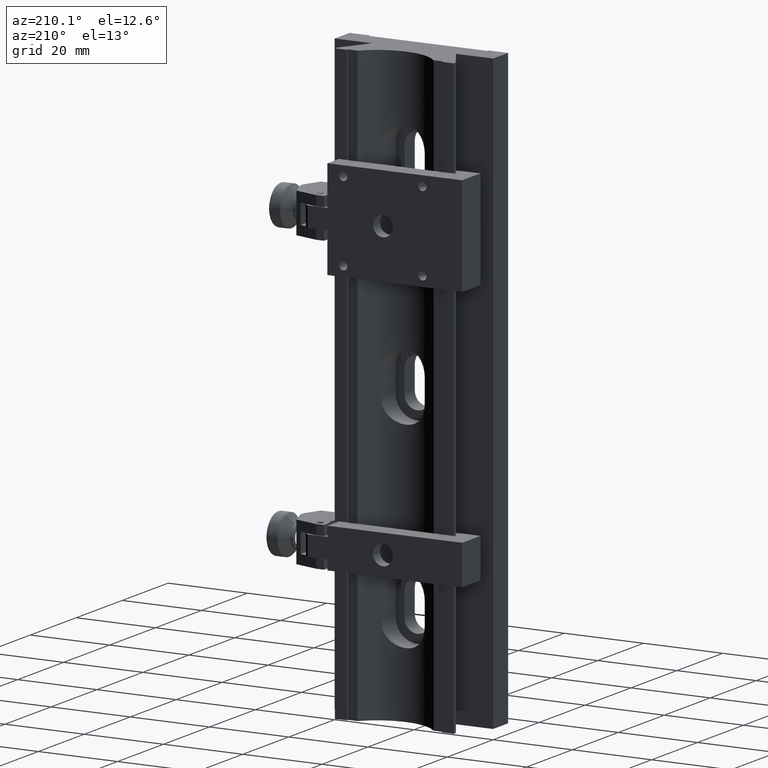
[diagram: clean part render]
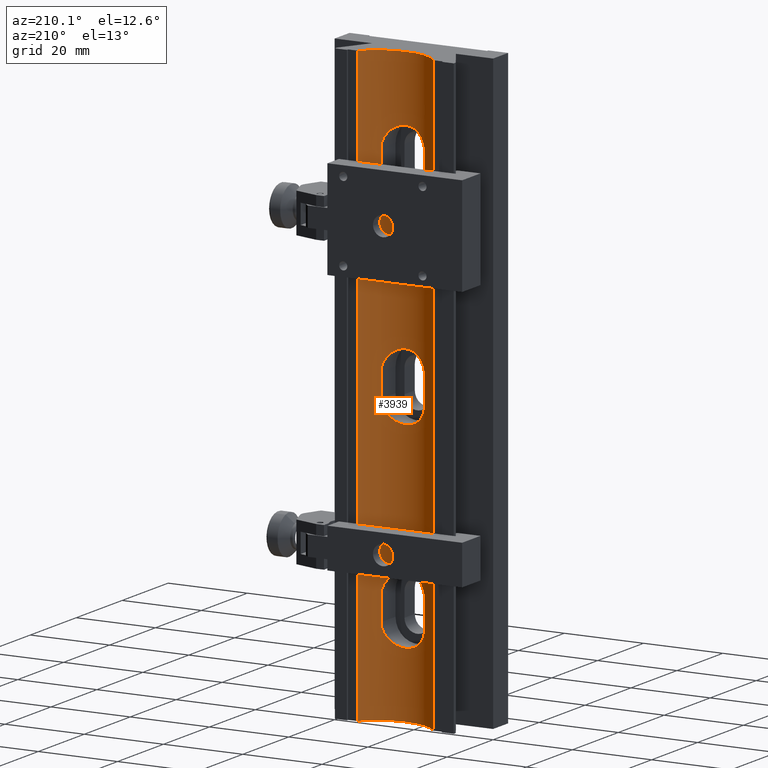
[diagram: same view with one face highlighted and labeled with its STEP entity id]
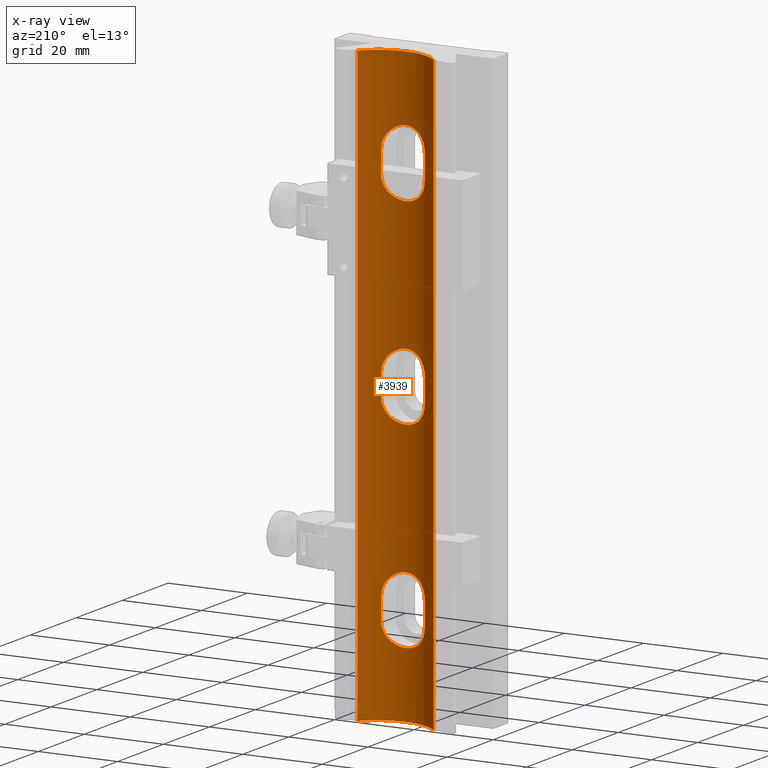
[diagram: x-ray of the same camera — body ghosted, the highlighted face saturated]
A machine part, auxiliary view. The second image highlights one B-rep face of the part: STEP entity #3939.
The next image is the same camera in x-ray: the body ghosted, the highlighted face saturated — about 0% of this face is hidden behind the body in this view.
In plain terms, the highlighted cylindrical surface (partial cylindrical patch) has radius 12.5 mm, axis along (-0, 0, -1).
Its self-contained STEP definition (entity closure, byte-faithful):
#21 = CARTESIAN_POINT ( 'NONE',  ( 5.499999999999998224, 4.775027839678173791, -47.00000000000000711 ) ) ;
#35 = ORIENTED_EDGE ( 'NONE', *, *, #217, .F. ) ;
#36 = CARTESIAN_POINT ( 'NONE',  ( -5.463268972524252476, 4.756815190711168206, 53.73288512969654107 ) ) ;
#53 = CARTESIAN_POINT ( 'NONE',  ( 5.499999999999995559, 4.775027839678172903, -53.36853593480275748 ) ) ;
#55 = EDGE_CURVE ( 'NONE', #2124, #766, #472, .T. ) ;
#56 = EDGE_CURVE ( 'NONE', #4422, #766, #3806, .T. ) ;
#64 = CARTESIAN_POINT ( 'NONE',  ( -4.927301002126869278, 4.511737245493972814, 55.45025479802641399 ) ) ;
#79 = CARTESIAN_POINT ( 'NONE',  ( -1.266012518167693779, 3.562992296828745964, -58.35539071678001477 ) ) ;
#117 = CARTESIAN_POINT ( 'NONE',  ( -3.365233826132083994, 3.957591329563104221, 42.63491411110871354 ) ) ;
#118 = CARTESIAN_POINT ( 'NONE',  ( 1.444167463114245598, 3.582471709711286145, 58.31011750618486644 ) ) ;
#130 = CARTESIAN_POINT ( 'NONE',  ( 4.468409719719217854, 4.325465594975082873, -43.78826126659802043 ) ) ;
#137 = CARTESIAN_POINT ( 'NONE',  ( 5.500000000000020428, 4.775027839678184449, 75.00000000000000000 ) ) ;
#139 = VECTOR ( 'NONE', #5163, 1000.000000000000000 ) ;
#154 = EDGE_CURVE ( 'NONE', #1066, #4923, #5124, .T. ) ;
#156 = CARTESIAN_POINT ( 'NONE',  ( 1.266012518167691558, 3.562992296828746408, -41.64460928321998523 ) ) ;
#165 = CARTESIAN_POINT ( 'NONE',  ( -4.360951971730211874, 4.284773272989582438, 43.64384853326597380 ) ) ;
#180 = CARTESIAN_POINT ( 'NONE',  ( -5.317647263843144678, 4.687213424654787630, -45.54842979611112241 ) ) ;
#193 = CARTESIAN_POINT ( 'NONE',  ( 0.1746818680405329560, 3.499893860054750672, 41.49975877267203117 ) ) ;
#206 = CARTESIAN_POINT ( 'NONE',  ( 5.213099869976741019, 4.637932341751268339, 4.789608110793816209 ) ) ;
#211 = VERTEX_POINT ( 'NONE', #3080 ) ;
#213 = CARTESIAN_POINT ( 'NONE',  ( 4.365141366191275019, 4.284993196813134730, -6.364994128390055295 ) ) ;
#217 = EDGE_CURVE ( 'NONE', #1066, #3548, #1658, .T. ) ;
#221 = CARTESIAN_POINT ( 'NONE',  ( 4.927301002126865725, 4.511737245493967485, 44.54974520197361443 ) ) ;
#237 = CARTESIAN_POINT ( 'NONE',  ( -5.499999999999999112, 4.775027839678175567, -46.63146406519726384 ) ) ;
#242 = CARTESIAN_POINT ( 'NONE',  ( -5.500000000000000000, 4.775027839678175567, -2.999999999999999112 ) ) ;
#259 = CARTESIAN_POINT ( 'NONE',  ( 5.500000000000000000, 4.775027839678176456, 3.368399263218692319 ) ) ;
#264 = CARTESIAN_POINT ( 'NONE',  ( 4.140132957479336184, 4.202588055097336905, -6.638006792826296909 ) ) ;
#270 = CARTESIAN_POINT ( 'NONE',  ( 4.140132957479337072, 4.202588055097337794, 43.36199320717373240 ) ) ;
#292 = CARTESIAN_POINT ( 'NONE',  ( 4.360951971730207433, 4.284773272989578885, 6.356151466734034194 ) ) ;
#300 = CARTESIAN_POINT ( 'NONE',  ( -3.640810629803843845, 4.039074654214521054, -7.137592340526057733 ) ) ;
#305 = CARTESIAN_POINT ( 'NONE',  ( 3.638581638029511733, 4.038379994050423250, 42.86037223972357424 ) ) ;
#323 = FACE_BOUND ( 'NONE', #1668, .T. ) ;
#327 = ORIENTED_EDGE ( 'NONE', *, *, #2253, .T. ) ;
#376 = CARTESIAN_POINT ( 'NONE',  ( -5.004172744658501593, 4.545134261420411548, 5.289133550571618159 ) ) ;
#395 = EDGE_CURVE ( 'NONE', #2683, #3176, #3883, .T. ) ;
#436 = DIRECTION ( 'NONE',  ( -0.000000000000000000, 0.000000000000000000, -1.000000000000000000 ) ) ;
#444 = CARTESIAN_POINT ( 'NONE',  ( -1.444167463114248262, 3.582471709711286145, -58.31011750618485934 ) ) ;
#472 = B_SPLINE_CURVE_WITH_KNOTS ( 'NONE', 3,
 ( #3544, #1392, #2712, #534, #3111, #4036, #2342, #4087, #165, #4868, #3600, #1911, #117, #1422, #3172, #4921, #2739, #4492, #2425, #2479, #1160, #193, #3313, #5002, #4234, #2852, #3743, #1131, #3258, #2907, #305, #270, #703, #644, #4661, #221, #674, #4575, #2055, #2397, #1945, #731 ),
 .UNSPECIFIED., .F., .F.,
 ( 4, 2, 2, 2, 2, 2, 2, 2, 2, 2, 2, 2, 2, 2, 2, 2, 2, 2, 2, 2, 4 ),
 ( 0.000000000000000000, 0.001088223458269300037, 0.002176446916538600073, 0.003264670374807899893, 0.003808782103942540912, 0.004352893833077181932, 0.005441117291346476981, 0.006529340749615772030, 0.007073452478750420422, 0.007617564207885067946, 0.008705787666154360394, 0.009249899395289007051, 0.009794011124423651973, 0.01088223458269294355, 0.01197045804096223513, 0.01305868149923152671, 0.01414690495750082003, 0.01469101668663546668, 0.01523512841577011161, 0.01632335187403940319, 0.01741157533230869650 ),
 .UNSPECIFIED. ) ;
#474 = CARTESIAN_POINT ( 'NONE',  ( 0.7235754915566942058, 3.519625967096239982, -58.45527255045185200 ) ) ;
#487 = EDGE_CURVE ( 'NONE', #3548, #1973, #2781, .T. ) ;
#504 = CARTESIAN_POINT ( 'NONE',  ( 4.757545737347824044, 4.440405074606873725, -55.76546601820658822 ) ) ;
#511 = CARTESIAN_POINT ( 'NONE',  ( 1.960439013360198768, 3.653553443696078151, 58.14185918289807375 ) ) ;
#522 = CARTESIAN_POINT ( 'NONE',  ( 2.455686713790326436, 3.739010744038293144, -42.06565600194459620 ) ) ;
#534 = CARTESIAN_POINT ( 'NONE',  ( -5.320886567516186716, 4.688748875783184111, 45.56165402701615363 ) ) ;
#535 = CARTESIAN_POINT ( 'NONE',  ( -5.211065515426130723, 4.637008669236495351, 54.79507806985631646 ) ) ;
#537 = ORIENTED_EDGE ( 'NONE', *, *, #56, .F. ) ;
#549 = CARTESIAN_POINT ( 'NONE',  ( 4.134927261176860824, 4.203101428351039281, -43.36901785846102797 ) ) ;
#554 = CARTESIAN_POINT ( 'NONE',  ( -5.500000000000000888, 4.775027839678175567, -53.00000000000000000 ) ) ;
#583 = CARTESIAN_POINT ( 'NONE',  ( -2.407148620655123076E-16, 16.00000000000000000, 75.00000000000000000 ) ) ;
#605 = EDGE_CURVE ( 'NONE', #1496, #3176, #3130, .T. ) ;
#606 = CARTESIAN_POINT ( 'NONE',  ( -5.004172744658504257, 4.545134261420413324, -44.71086644942840849 ) ) ;
#628 = CARTESIAN_POINT ( 'NONE',  ( 5.500000000000000000, 4.775027839678175567, 3.000000000000000000 ) ) ;
#630 = CARTESIAN_POINT ( 'NONE',  ( -4.140132957479336184, 4.202588055097336017, -43.36199320717371819 ) ) ;
#644 = CARTESIAN_POINT ( 'NONE',  ( 4.664130054569969097, 4.402269544413255353, 44.07975994278031351 ) ) ;
#669 = CARTESIAN_POINT ( 'NONE',  ( -4.134927261176861712, 4.203101428351038393, -6.630982141538981800 ) ) ;
#674 = CARTESIAN_POINT ( 'NONE',  ( 5.004172744658499816, 4.545134261420411548, 44.71086644942839428 ) ) ;
#690 = CARTESIAN_POINT ( 'NONE',  ( -2.452909808896964972, 3.738324891094070956, -42.06391993402969121 ) ) ;
#696 = CARTESIAN_POINT ( 'NONE',  ( -4.360951971730206544, 4.284773272989578885, -6.356151466734034194 ) ) ;
#703 = CARTESIAN_POINT ( 'NONE',  ( 4.365141366191271466, 4.284993196813129401, 43.63500587160995536 ) ) ;
#717 = CARTESIAN_POINT ( 'NONE',  ( -0.1746818680405349544, 3.499893860054751116, 8.500241227327974158 ) ) ;
#718 = FACE_BOUND ( 'NONE', #1717, .T. ) ;
#724 = CARTESIAN_POINT ( 'NONE',  ( -4.015897234029106144, 4.161930955679301825, -6.762161946319627859 ) ) ;
#731 = CARTESIAN_POINT ( 'NONE',  ( 5.499999999999996447, 4.775027839678173791, 47.00000000000000711 ) ) ;
#752 = CYLINDRICAL_SURFACE ( 'NONE', #5603, 12.50000000000000000 ) ;
#755 = VERTEX_POINT ( 'NONE', #21 ) ;
#766 = VERTEX_POINT ( 'NONE', #5575 ) ;
#837 = CARTESIAN_POINT ( 'NONE',  ( -4.757545737347821380, 4.440405074606874614, 5.765466018206602428 ) ) ;
#852 = CARTESIAN_POINT ( 'NONE',  ( -5.320886567516186716, 4.688748875783184111, -54.43834597298383926 ) ) ;
#855 = CARTESIAN_POINT ( 'NONE',  ( -2.407148620655123076E-16, 16.00000000000000000, -75.00000000000000000 ) ) ;
#859 = CARTESIAN_POINT ( 'NONE',  ( 3.365233826132080885, 3.957591329563105109, 57.36508588889129356 ) ) ;
#901 = CARTESIAN_POINT ( 'NONE',  ( -5.463371493397495726, 4.756877311680622000, -53.72955118223784154 ) ) ;
#905 = EDGE_CURVE ( 'NONE', #755, #211, #4416, .T. ) ;
#934 = EDGE_CURVE ( 'NONE', #2683, #4175, #1623, .T. ) ;
#937 = CARTESIAN_POINT ( 'NONE',  ( -4.664130054569975314, 4.402269544413257130, 55.92024005721968649 ) ) ;
#958 = CARTESIAN_POINT ( 'NONE',  ( -4.134927261176864377, 4.203101428351041946, -56.63098214153899335 ) ) ;
#996 = ORIENTED_EDGE ( 'NONE', *, *, #154, .T. ) ;
#1001 = CARTESIAN_POINT ( 'NONE',  ( 2.769513885777390882, 3.806797052175196594, -42.23464939816305730 ) ) ;
#1010 = CARTESIAN_POINT ( 'NONE',  ( 5.499999999999998224, 4.775027839678175567, -3.000000000000000000 ) ) ;
#1030 = CARTESIAN_POINT ( 'NONE',  ( -0.7235754915566965373, 3.519625967096239538, -41.54472744954816221 ) ) ;
#1062 = CARTESIAN_POINT ( 'NONE',  ( -3.359488323669843179, 3.956037097100740585, -42.63069234585947953 ) ) ;
#1066 = VERTEX_POINT ( 'NONE', #4414 ) ;
#1089 = CARTESIAN_POINT ( 'NONE',  ( -4.365141366191277683, 4.284993196813134730, -43.63500587160996957 ) ) ;
#1120 = CARTESIAN_POINT ( 'NONE',  ( -2.767522286145578381, 3.806394110068380243, -42.23367735365171427 ) ) ;
#1125 = CARTESIAN_POINT ( 'NONE',  ( -2.455686713790327325, 3.739010744038294476, -7.934343998055412683 ) ) ;
#1131 = CARTESIAN_POINT ( 'NONE',  ( 2.452909808896960975, 3.738324891094070068, 42.06391993402969121 ) ) ;
#1147 = CARTESIAN_POINT ( 'NONE',  ( 0.3716744979042022057, 3.500218916825644566, 8.499502461394968122 ) ) ;
#1154 = CARTESIAN_POINT ( 'NONE',  ( -1.960439013360199656, 3.653553443696078595, -8.141859182898073755 ) ) ;
#1160 = CARTESIAN_POINT ( 'NONE',  ( -0.3716744979042029273, 3.500218916825644122, 41.50049753860503898 ) ) ;
#1182 = CARTESIAN_POINT ( 'NONE',  ( 9.604686356149276349, 8.000000000000001776, 75.00000000000000000 ) ) ;
#1255 = B_SPLINE_CURVE_WITH_KNOTS ( 'NONE', 3,
 ( #1716, #3561, #901, #852, #3021, #2678, #4779, #1742, #2648, #958, #2195, #3479, #3945, #2141, #3104, #4428, #1352, #444, #79, #3454, #2597, #3052, #4888, #474, #4373, #5238, #5289, #1773, #2226, #3508, #1384, #2707, #3976, #1820, #504, #5267, #1330, #4346, #4456, #3891, #53, #5208 ),
 .UNSPECIFIED., .F., .F.,
 ( 4, 2, 2, 2, 2, 2, 2, 2, 2, 2, 2, 2, 2, 2, 2, 2, 2, 2, 2, 2, 4 ),
 ( 0.000000000000000000, 0.001088223458269300037, 0.002176446916538600073, 0.003264670374807899893, 0.003808782103942540912, 0.004352893833077181932, 0.005441117291346476981, 0.006529340749615772030, 0.007073452478750420422, 0.007617564207885067946, 0.008705787666154360394, 0.009249899395289007051, 0.009794011124423651973, 0.01088223458269294355, 0.01197045804096223513, 0.01305868149923152671, 0.01414690495750082003, 0.01469101668663546668, 0.01523512841577011161, 0.01632335187403940319, 0.01741157533230869650 ),
 .UNSPECIFIED. ) ;
#1261 = ORIENTED_EDGE ( 'NONE', *, *, #1967, .T. ) ;
#1311 = ORIENTED_EDGE ( 'NONE', *, *, #395, .F. ) ;
#1315 = CARTESIAN_POINT ( 'NONE',  ( -2.767522286145578381, 3.806394110068380243, 57.76632264634828573 ) ) ;
#1324 = ORIENTED_EDGE ( 'NONE', *, *, #1828, .T. ) ;
#1330 = CARTESIAN_POINT ( 'NONE',  ( 5.004172744658499816, 4.545134261420411548, -55.28913355057161283 ) ) ;
#1352 = CARTESIAN_POINT ( 'NONE',  ( -1.791243918881802122, 3.627770058525933372, -58.20330787231332437 ) ) ;
#1361 = CARTESIAN_POINT ( 'NONE',  ( 3.640810629803840737, 4.039074654214518389, 57.13759234052604086 ) ) ;
#1384 = CARTESIAN_POINT ( 'NONE',  ( 3.638581638029511733, 4.038379994050423250, -57.13962776027643287 ) ) ;
#1392 = CARTESIAN_POINT ( 'NONE',  ( -5.500000000000000000, 4.775027839678176456, 46.63160073678130857 ) ) ;
#1394 = B_SPLINE_CURVE_WITH_KNOTS ( 'NONE', 3,
 ( #3984, #3545, #1830, #2713, #5300, #2286, #3087, #1805, #5250, #4009, #2684, #1361, #859, #5275, #4819, #511, #4897, #118, #3112, #4438, #2607, #4840, #5354, #3958, #4869, #4466, #1779, #2262, #1315, #3144, #3061, #2204, #4359, #937, #2178, #64, #2658, #535, #3035, #36, #2232, #1860 ),
 .UNSPECIFIED., .F., .F.,
 ( 4, 2, 2, 2, 2, 2, 2, 2, 2, 2, 2, 2, 2, 2, 2, 2, 2, 2, 2, 2, 4 ),
 ( 0.000000000000000000, 0.001088223458269302422, 0.002176446916538604844, 0.003264670374807907265, 0.003808782103942550887, 0.004352893833077194942, 0.005441117291346483052, 0.006529340749615771163, 0.007073452478750415218, 0.007617564207885058405, 0.008705787666154349985, 0.009249899395288994908, 0.009794011124423641565, 0.01088223458269293314, 0.01197045804096222646, 0.01305868149923151630, 0.01414690495750081135, 0.01469101668663545801, 0.01523512841577010293, 0.01632335187403939625, 0.01741157533230868956 ),
 .UNSPECIFIED. ) ;
#1408 = CARTESIAN_POINT ( 'NONE',  ( -0.1746818680405354818, 3.499893860054751116, -41.49975877267203828 ) ) ;
#1419 = DIRECTION ( 'NONE',  ( -0.000000000000000000, 0.000000000000000000, -1.000000000000000000 ) ) ;
#1422 = CARTESIAN_POINT ( 'NONE',  ( -2.769513885777393991, 3.806797052175194374, 42.23464939816305730 ) ) ;
#1451 = ORIENTED_EDGE ( 'NONE', *, *, #487, .F. ) ;
#1455 = ORIENTED_EDGE ( 'NONE', *, *, #605, .T. ) ;
#1496 = VERTEX_POINT ( 'NONE', #3414 ) ;
#1498 = CARTESIAN_POINT ( 'NONE',  ( 4.015897234029105256, 4.161930955679302713, 6.762161946319630523 ) ) ;
#1504 = CARTESIAN_POINT ( 'NONE',  ( -2.769513885777389550, 3.806797052175194374, -7.765350601836940037 ) ) ;
#1506 = AXIS2_PLACEMENT_3D ( 'NONE', #583, #2336, #3137 ) ;
#1529 = CARTESIAN_POINT ( 'NONE',  ( 1.791243918881799235, 3.627770058525933372, 8.203307872313336802 ) ) ;
#1586 = CARTESIAN_POINT ( 'NONE',  ( -3.638581638029509069, 4.038379994050423250, -42.86037223972356713 ) ) ;
#1594 = CARTESIAN_POINT ( 'NONE',  ( 3.638581638029508181, 4.038379994050424138, -7.139627760276439972 ) ) ;
#1618 = VECTOR ( 'NONE', #2570, 1000.000000000000000 ) ;
#1623 = B_SPLINE_CURVE_WITH_KNOTS ( 'NONE', 3,
 ( #4620, #259, #4565, #5046, #206, #5514, #2438, #1956, #292, #5456, #1498, #3327, #2010, #2042, #2380, #1984, #1529, #5540, #5076, #3272, #1147, #717, #2463, #4595, #3731, #3761, #4215, #5101, #2783, #5424, #2355, #3298, #4101, #3245, #837, #2552, #376, #3932, #5596, #5567, #4304, #4676 ),
 .UNSPECIFIED., .F., .F.,
 ( 4, 2, 2, 2, 2, 2, 2, 2, 2, 2, 2, 2, 2, 2, 2, 2, 2, 2, 2, 2, 4 ),
 ( 8.673617379884034509E-19, 0.001088223458269297434, 0.002176446916538595303, 0.003264670374807892954, 0.003808782103942540045, 0.004352893833077187136, 0.005441117291346481318, 0.006529340749615774632, 0.007073452478750421289, 0.007617564207885067946, 0.008705787666154360394, 0.009249899395289007051, 0.009794011124423651973, 0.01088223458269294529, 0.01197045804096223687, 0.01305868149923153018, 0.01414690495750082003, 0.01469101668663546668, 0.01523512841577011508, 0.01632335187403940666, 0.01741157533230869997 ),
 .UNSPECIFIED. ) ;
#1626 = CARTESIAN_POINT ( 'NONE',  ( 5.211065515426129835, 4.637008669236497127, -4.795078069856328007 ) ) ;
#1633 = VERTEX_POINT ( 'NONE', #3180 ) ;
#1658 = LINE ( 'NONE', #5615, #1618 ) ;
#1668 = EDGE_LOOP ( 'NONE', ( #3119, #1455, #1311, #2477 ) ) ;
#1716 = CARTESIAN_POINT ( 'NONE',  ( -5.500000000000000888, 4.775027839678175567, -53.00000000000000000 ) ) ;
#1717 = EDGE_LOOP ( 'NONE', ( #327, #5469, #537, #1261 ) ) ;
#1742 = CARTESIAN_POINT ( 'NONE',  ( -4.468409719719223183, 4.325465594975084649, -56.21173873340199378 ) ) ;
#1764 = VECTOR ( 'NONE', #4057, 1000.000000000000000 ) ;
#1773 = CARTESIAN_POINT ( 'NONE',  ( 2.452909808896960975, 3.738324891094070068, -57.93608006597031590 ) ) ;
#1779 = CARTESIAN_POINT ( 'NONE',  ( -1.783197991779767788, 3.623181025438773517, 58.21554003631119656 ) ) ;
#1805 = CARTESIAN_POINT ( 'NONE',  ( 4.468409719719217854, 4.325465594975082873, 56.21173873340197247 ) ) ;
#1816 = CARTESIAN_POINT ( 'NONE',  ( 3.365233826132080885, 3.957591329563105109, -42.63491411110871354 ) ) ;
#1820 = CARTESIAN_POINT ( 'NONE',  ( 4.664130054569969097, 4.402269544413255353, -55.92024005721970781 ) ) ;
#1828 = EDGE_CURVE ( 'NONE', #211, #2370, #4271, .T. ) ;
#1830 = CARTESIAN_POINT ( 'NONE',  ( 5.463371493397491285, 4.756877311680619336, 53.72955118223783444 ) ) ;
#1860 = CARTESIAN_POINT ( 'NONE',  ( -5.499999999999999112, 4.775027839678173791, 53.00000000000000000 ) ) ;
#1874 = CARTESIAN_POINT ( 'NONE',  ( 3.640810629803840737, 4.039074654214518389, -42.86240765947393783 ) ) ;
#1879 = CARTESIAN_POINT ( 'NONE',  ( -5.499999999999994671, 4.775027839678172015, 75.00000000000000000 ) ) ;
#1911 = CARTESIAN_POINT ( 'NONE',  ( -3.640810629803843845, 4.039074654214521942, 42.86240765947395204 ) ) ;
#1945 = CARTESIAN_POINT ( 'NONE',  ( 5.499999999999995559, 4.775027839678172903, 46.63146406519727094 ) ) ;
#1956 = CARTESIAN_POINT ( 'NONE',  ( 4.468409719719221407, 4.325465594975082873, 6.211738733401977797 ) ) ;
#1961 = CARTESIAN_POINT ( 'NONE',  ( 0.3589657864649589136, 3.503822942303210120, -8.491329862232156245 ) ) ;
#1967 = EDGE_CURVE ( 'NONE', #4422, #3491, #1394, .T. ) ;
#1973 = VERTEX_POINT ( 'NONE', #3519 ) ;
#1984 = CARTESIAN_POINT ( 'NONE',  ( 1.960439013360198768, 3.653553443696078151, 8.141859182898071978 ) ) ;
#1989 = CARTESIAN_POINT ( 'NONE',  ( -4.935953207741842874, 4.514820086043213720, -5.452646198609490291 ) ) ;
#2010 = CARTESIAN_POINT ( 'NONE',  ( 3.365233826132080441, 3.957591329563105109, 7.365085888891296229 ) ) ;
#2016 = CARTESIAN_POINT ( 'NONE',  ( 5.499999999999998224, 4.775027839678175567, -3.000000000000000000 ) ) ;
#2033 = LINE ( 'NONE', #3375, #4052 ) ;
#2042 = CARTESIAN_POINT ( 'NONE',  ( 2.769513885777389994, 3.806797052175196594, 7.765350601836939148 ) ) ;
#2050 = CARTESIAN_POINT ( 'NONE',  ( 0.7235754915566960932, 3.519625967096238650, -8.455272550451859104 ) ) ;
#2055 = CARTESIAN_POINT ( 'NONE',  ( 5.317647263843142014, 4.687213424654785854, 45.54842979611111531 ) ) ;
#2070 = CARTESIAN_POINT ( 'NONE',  ( -2.407148620655123076E-16, 16.00000000000000000, 75.00000000000000000 ) ) ;
#2124 = VERTEX_POINT ( 'NONE', #3654 ) ;
#2141 = CARTESIAN_POINT ( 'NONE',  ( -2.769513885777393991, 3.806797052175194374, -57.76535060183693560 ) ) ;
#2178 = CARTESIAN_POINT ( 'NONE',  ( -4.757545737347824932, 4.440405074606876390, 55.76546601820659532 ) ) ;
#2195 = CARTESIAN_POINT ( 'NONE',  ( -4.015897234029109697, 4.161930955679306265, -56.76216194631963674 ) ) ;
#2204 = CARTESIAN_POINT ( 'NONE',  ( -4.140132957479336184, 4.202588055097336017, 56.63800679282630313 ) ) ;
#2212 = EDGE_CURVE ( 'NONE', #2370, #1633, #1255, .T. ) ;
#2221 = CARTESIAN_POINT ( 'NONE',  ( -1.436019803944293072, 3.577646812477412119, -41.67844251871878924 ) ) ;
#2226 = CARTESIAN_POINT ( 'NONE',  ( 2.767522286145575716, 3.806394110068378911, -57.76632264634827862 ) ) ;
#2232 = CARTESIAN_POINT ( 'NONE',  ( -5.499999999999999112, 4.775027839678175567, 53.36853593480275038 ) ) ;
#2253 = EDGE_CURVE ( 'NONE', #3491, #2124, #2360, .T. ) ;
#2262 = CARTESIAN_POINT ( 'NONE',  ( -2.452909808896964972, 3.738324891094070956, 57.93608006597030879 ) ) ;
#2273 = CARTESIAN_POINT ( 'NONE',  ( 5.499999999999998224, 4.775027839678173791, -47.00000000000000711 ) ) ;
#2282 = LINE ( 'NONE', #137, #3486 ) ;
#2286 = CARTESIAN_POINT ( 'NONE',  ( 4.935953207741841098, 4.514820086043214609, 55.45264619860950717 ) ) ;
#2328 = CARTESIAN_POINT ( 'NONE',  ( 1.960439013360198768, 3.653553443696078151, -41.85814081710193335 ) ) ;
#2336 = DIRECTION ( 'NONE',  ( -0.000000000000000000, 0.000000000000000000, -1.000000000000000000 ) ) ;
#2342 = CARTESIAN_POINT ( 'NONE',  ( -4.767077514528522464, 4.442719698820005725, 44.23363479812596211 ) ) ;
#2355 = CARTESIAN_POINT ( 'NONE',  ( -3.638581638029507292, 4.038379994050423250, 7.139627760276445301 ) ) ;
#2360 = LINE ( 'NONE', #1879, #1764 ) ;
#2370 = VERTEX_POINT ( 'NONE', #554 ) ;
#2371 = CARTESIAN_POINT ( 'NONE',  ( -5.499999999999998224, 4.775027839678173791, 3.000000000000000888 ) ) ;
#2380 = CARTESIAN_POINT ( 'NONE',  ( 2.455686713790326881, 3.739010744038294920, 7.934343998055412683 ) ) ;
#2387 = CARTESIAN_POINT ( 'NONE',  ( -5.320886567516185828, 4.688748875783186776, -4.438345972983841037 ) ) ;
#2397 = CARTESIAN_POINT ( 'NONE',  ( 5.463268972524248923, 4.756815190711164654, 46.26711487030346603 ) ) ;
#2415 = CARTESIAN_POINT ( 'NONE',  ( 0.9034421561682073332, 3.531417676067723388, -8.428312260402234912 ) ) ;
#2425 = CARTESIAN_POINT ( 'NONE',  ( -1.266012518167693779, 3.562992296828745964, 41.64460928321998523 ) ) ;
#2438 = CARTESIAN_POINT ( 'NONE',  ( 4.767077514528520688, 4.442719698820005725, 5.766365201874047663 ) ) ;
#2444 = CARTESIAN_POINT ( 'NONE',  ( 1.783197991779767344, 3.623181025438775738, -8.215540036311200112 ) ) ;
#2463 = CARTESIAN_POINT ( 'NONE',  ( -0.3589657864649586916, 3.503822942303210564, 8.491329862232156245 ) ) ;
#2464 = FACE_OUTER_BOUND ( 'NONE', #4980, .T. ) ;
#2470 = CARTESIAN_POINT ( 'NONE',  ( 2.767522286145574828, 3.806394110068380243, -7.766322646348287506 ) ) ;
#2477 = ORIENTED_EDGE ( 'NONE', *, *, #934, .T. ) ;
#2479 = CARTESIAN_POINT ( 'NONE',  ( -0.7318247305610910969, 3.516321624483725206, 41.53681207847808565 ) ) ;
#2506 = CARTESIAN_POINT ( 'NONE',  ( -4.468409719719221407, 4.325465594975086425, -6.211738733401979573 ) ) ;
#2552 = CARTESIAN_POINT ( 'NONE',  ( -4.927301002126864837, 4.511737245493970150, 5.450254798026420211 ) ) ;
#2570 = DIRECTION ( 'NONE',  ( 0.000000000000000000, -0.000000000000000000, 1.000000000000000000 ) ) ;
#2597 = CARTESIAN_POINT ( 'NONE',  ( -0.3716744979042029273, 3.500218916825644122, -58.49950246139498233 ) ) ;
#2607 = CARTESIAN_POINT ( 'NONE',  ( 0.3716744979042022612, 3.500218916825644566, 58.49950246139498944 ) ) ;
#2648 = CARTESIAN_POINT ( 'NONE',  ( -4.360951971730211874, 4.284773272989582438, -56.35615146673404041 ) ) ;
#2653 = AXIS2_PLACEMENT_3D ( 'NONE', #855, #4786, #5583 ) ;
#2658 = CARTESIAN_POINT ( 'NONE',  ( -5.004172744658504257, 4.545134261420413324, 55.28913355057162704 ) ) ;
#2678 = CARTESIAN_POINT ( 'NONE',  ( -4.935953207741842874, 4.514820086043211944, -55.45264619860950717 ) ) ;
#2683 = VERTEX_POINT ( 'NONE', #628 ) ;
#2684 = CARTESIAN_POINT ( 'NONE',  ( 4.015897234029105256, 4.161930955679302713, 56.76216194631963674 ) ) ;
#2707 = CARTESIAN_POINT ( 'NONE',  ( 4.140132957479337072, 4.202588055097337794, -56.63800679282628892 ) ) ;
#2712 = CARTESIAN_POINT ( 'NONE',  ( -5.463371493397495726, 4.756877311680622000, 46.27044881776216556 ) ) ;
#2713 = CARTESIAN_POINT ( 'NONE',  ( 5.320886567516184051, 4.688748875783184999, 54.43834597298385347 ) ) ;
#2739 = CARTESIAN_POINT ( 'NONE',  ( -1.791243918881802122, 3.627770058525933372, 41.79669212768665432 ) ) ;
#2781 = CIRCLE ( 'NONE', #1506, 12.50000000000000000 ) ;
#2783 = CARTESIAN_POINT ( 'NONE',  ( -2.767522286145574828, 3.806394110068377579, 7.766322646348287506 ) ) ;
#2808 = CARTESIAN_POINT ( 'NONE',  ( -4.927301002126869278, 4.511737245493972814, -44.54974520197360732 ) ) ;
#2814 = CARTESIAN_POINT ( 'NONE',  ( 2.452909808896963639, 3.738324891094070068, -7.936080065970312347 ) ) ;
#2833 = CARTESIAN_POINT ( 'NONE',  ( -5.463268972524252476, 4.756815190711168206, -46.26711487030347314 ) ) ;
#2843 = CARTESIAN_POINT ( 'NONE',  ( -0.7318247305610894315, 3.516321624483726538, -8.463187921521909018 ) ) ;
#2852 = CARTESIAN_POINT ( 'NONE',  ( 1.436019803944289963, 3.577646812477411675, 41.67844251871878924 ) ) ;
#2873 = CARTESIAN_POINT ( 'NONE',  ( 1.436019803944290851, 3.577646812477408567, -8.321557481281223190 ) ) ;
#2893 = CARTESIAN_POINT ( 'NONE',  ( -1.783197991779767788, 3.623181025438773517, -41.78445996368879634 ) ) ;
#2907 = CARTESIAN_POINT ( 'NONE',  ( 3.359488323669839183, 3.956037097100741473, 42.63069234585947953 ) ) ;
#2925 = ORIENTED_EDGE ( 'NONE', *, *, #5058, .F. ) ;
#2928 = CARTESIAN_POINT ( 'NONE',  ( 5.499999999999998224, 4.775027839678175567, -3.368535934802750376 ) ) ;
#2935 = CARTESIAN_POINT ( 'NONE',  ( 5.500000000000002665, 4.775027839678175567, 75.00000000000000000 ) ) ;
#3021 = CARTESIAN_POINT ( 'NONE',  ( -5.213099869976743683, 4.637932341751265675, -54.78960811079380022 ) ) ;
#3035 = CARTESIAN_POINT ( 'NONE',  ( -5.317647263843144678, 4.687213424654787630, 54.45157020388889180 ) ) ;
#3052 = CARTESIAN_POINT ( 'NONE',  ( 0.1746818680405329560, 3.499893860054750672, -58.50024122732799015 ) ) ;
#3061 = CARTESIAN_POINT ( 'NONE',  ( -3.638581638029509069, 4.038379994050423250, 57.13962776027643287 ) ) ;
#3080 = CARTESIAN_POINT ( 'NONE',  ( -5.499999999999999112, 4.775027839678173791, -47.00000000000000711 ) ) ;
#3086 = ORIENTED_EDGE ( 'NONE', *, *, #2212, .T. ) ;
#3087 = CARTESIAN_POINT ( 'NONE',  ( 4.767077514528518911, 4.442719698820004837, 55.76636520187405921 ) ) ;
#3104 = CARTESIAN_POINT ( 'NONE',  ( -2.455686713790328657, 3.739010744038292700, -57.93434399805540380 ) ) ;
#3111 = CARTESIAN_POINT ( 'NONE',  ( -5.213099869976743683, 4.637932341751265675, 45.21039188920618557 ) ) ;
#3112 = CARTESIAN_POINT ( 'NONE',  ( 1.266012518167691558, 3.562992296828746408, 58.35539071678000766 ) ) ;
#3119 = ORIENTED_EDGE ( 'NONE', *, *, #4276, .T. ) ;
#3130 = B_SPLINE_CURVE_WITH_KNOTS ( 'NONE', 3,
 ( #242, #5549, #3253, #2387, #5520, #1989, #4258, #2506, #696, #669, #724, #300, #5055, #1504, #1125, #1154, #4627, #3305, #4193, #2843, #3334, #5085, #1961, #2050, #2415, #2873, #2444, #2814, #2470, #3800, #1594, #264, #213, #4225, #5461, #3737, #4140, #1626, #3710, #5430, #2928, #2016 ),
 .UNSPECIFIED., .F., .F.,
 ( 4, 2, 2, 2, 2, 2, 2, 2, 2, 2, 2, 2, 2, 2, 2, 2, 2, 2, 2, 2, 4 ),
 ( 8.673617379884034509E-19, 0.001088223458269295266, 0.002176446916538590966, 0.003264670374807886449, 0.003808782103942533540, 0.004352893833077181064, 0.005441117291346473511, 0.006529340749615765091, 0.007073452478750411748, 0.007617564207885058405, 0.008705787666154349985, 0.009249899395288996642, 0.009794011124423643300, 0.01088223458269293661, 0.01197045804096222993, 0.01305868149923152151, 0.01414690495750081656, 0.01469101668663546321, 0.01523512841577010987, 0.01632335187403940666, 0.01741157533230869997 ),
 .UNSPECIFIED. ) ;
#3137 = DIRECTION ( 'NONE',  ( 0.000000000000000000, -1.000000000000000000, 0.000000000000000000 ) ) ;
#3144 = CARTESIAN_POINT ( 'NONE',  ( -3.359488323669843179, 3.956037097100740585, 57.36930765414049915 ) ) ;
#3161 = CARTESIAN_POINT ( 'NONE',  ( -0.3589657864649589136, 3.503822942303211008, -41.50867013776785797 ) ) ;
#3172 = CARTESIAN_POINT ( 'NONE',  ( -2.455686713790328657, 3.739010744038292700, 42.06565600194458909 ) ) ;
#3176 = VERTEX_POINT ( 'NONE', #1010 ) ;
#3180 = CARTESIAN_POINT ( 'NONE',  ( 5.499999999999996447, 4.775027839678173791, -53.00000000000000000 ) ) ;
#3245 = CARTESIAN_POINT ( 'NONE',  ( -4.664130054569973538, 4.402269544413255353, 5.920240057219704255 ) ) ;
#3253 = CARTESIAN_POINT ( 'NONE',  ( -5.463371493397493950, 4.756877311680622000, -3.729551182237841100 ) ) ;
#3258 = CARTESIAN_POINT ( 'NONE',  ( 2.767522286145575716, 3.806394110068378911, 42.23367735365170716 ) ) ;
#3272 = CARTESIAN_POINT ( 'NONE',  ( 0.7318247305610885434, 3.516321624483726538, 8.463187921521909018 ) ) ;
#3298 = CARTESIAN_POINT ( 'NONE',  ( -4.140132957479334408, 4.202588055097335129, 6.638006792826297797 ) ) ;
#3305 = CARTESIAN_POINT ( 'NONE',  ( -1.444167463114246930, 3.582471709711284369, -8.310117506184880654 ) ) ;
#3313 = CARTESIAN_POINT ( 'NONE',  ( 0.3589657864649564156, 3.503822942303211452, 41.50867013776785086 ) ) ;
#3327 = CARTESIAN_POINT ( 'NONE',  ( 3.640810629803841181, 4.039074654214518389, 7.137592340526055956 ) ) ;
#3334 = CARTESIAN_POINT ( 'NONE',  ( -0.3716744979042026498, 3.500218916825645454, -8.499502461394968122 ) ) ;
#3375 = CARTESIAN_POINT ( 'NONE',  ( -5.499999999999984013, 4.775027839678166686, 75.00000000000000000 ) ) ;
#3383 = DIRECTION ( 'NONE',  ( 0.000000000000000000, 1.000000000000000000, 0.000000000000000000 ) ) ;
#3414 = CARTESIAN_POINT ( 'NONE',  ( -5.500000000000000000, 4.775027839678175567, -2.999999999999999112 ) ) ;
#3436 = CARTESIAN_POINT ( 'NONE',  ( -5.499999999999976019, 4.775027839678163133, 75.00000000000000000 ) ) ;
#3454 = CARTESIAN_POINT ( 'NONE',  ( -0.7318247305610910969, 3.516321624483725206, -58.46318792152189303 ) ) ;
#3479 = CARTESIAN_POINT ( 'NONE',  ( -3.640810629803843845, 4.039074654214521942, -57.13759234052605507 ) ) ;
#3486 = VECTOR ( 'NONE', #1419, 1000.000000000000000 ) ;
#3491 = VERTEX_POINT ( 'NONE', #5608 ) ;
#3508 = CARTESIAN_POINT ( 'NONE',  ( 3.359488323669839183, 3.956037097100741473, -57.36930765414052757 ) ) ;
#3519 = CARTESIAN_POINT ( 'NONE',  ( -9.604686356149272797, 7.999999999999998224, 75.00000000000000000 ) ) ;
#3544 = CARTESIAN_POINT ( 'NONE',  ( -5.500000000000000888, 4.775027839678175567, 47.00000000000000711 ) ) ;
#3545 = CARTESIAN_POINT ( 'NONE',  ( 5.499999999999999112, 4.775027839678174679, 53.36839926321869854 ) ) ;
#3548 = VERTEX_POINT ( 'NONE', #1182 ) ;
#3558 = CARTESIAN_POINT ( 'NONE',  ( 5.499999999999999112, 4.775027839678174679, -46.63160073678130857 ) ) ;
#3561 = CARTESIAN_POINT ( 'NONE',  ( -5.500000000000000000, 4.775027839678176456, -53.36839926321868433 ) ) ;
#3600 = CARTESIAN_POINT ( 'NONE',  ( -4.015897234029109697, 4.161930955679306265, 43.23783805368038458 ) ) ;
#3619 = ORIENTED_EDGE ( 'NONE', *, *, #5508, .F. ) ;
#3640 = CARTESIAN_POINT ( 'NONE',  ( 0.3716744979042022612, 3.500218916825644566, -41.50049753860503898 ) ) ;
#3654 = CARTESIAN_POINT ( 'NONE',  ( -5.500000000000000888, 4.775027839678175567, 47.00000000000000711 ) ) ;
#3655 = VECTOR ( 'NONE', #5556, 1000.000000000000000 ) ;
#3698 = VECTOR ( 'NONE', #436, 1000.000000000000000 ) ;
#3710 = CARTESIAN_POINT ( 'NONE',  ( 5.317647263843144678, 4.687213424654785854, -4.451570203888885580 ) ) ;
#3731 = CARTESIAN_POINT ( 'NONE',  ( -0.9034421561682075552, 3.531417676067723832, 8.428312260402234912 ) ) ;
#3737 = CARTESIAN_POINT ( 'NONE',  ( 4.927301002126865725, 4.511737245493970150, -5.450254798026420211 ) ) ;
#3743 = CARTESIAN_POINT ( 'NONE',  ( 1.783197991779765346, 3.623181025438774849, 41.78445996368879634 ) ) ;
#3761 = CARTESIAN_POINT ( 'NONE',  ( -1.436019803944291295, 3.577646812477409011, 8.321557481281221413 ) ) ;
#3790 = CARTESIAN_POINT ( 'NONE',  ( -5.211065515426130723, 4.637008669236495351, -45.20492193014366933 ) ) ;
#3800 = CARTESIAN_POINT ( 'NONE',  ( 3.359488323669838739, 3.956037097100741473, -7.369307654140526687 ) ) ;
#3806 = LINE ( 'NONE', #2935, #3655 ) ;
#3814 = LINE ( 'NONE', #5217, #139 ) ;
#3874 = DIRECTION ( 'NONE',  ( -0.000000000000000000, 0.000000000000000000, -1.000000000000000000 ) ) ;
#3883 = LINE ( 'NONE', #3911, #3698 ) ;
#3891 = CARTESIAN_POINT ( 'NONE',  ( 5.463268972524248923, 4.756815190711164654, -53.73288512969653397 ) ) ;
#3911 = CARTESIAN_POINT ( 'NONE',  ( 5.500000000000013323, 4.775027839678182673, 75.00000000000000000 ) ) ;
#3932 = CARTESIAN_POINT ( 'NONE',  ( -5.211065515426134276, 4.637008669236494462, 4.795078069856331560 ) ) ;
#3939 = ADVANCED_FACE ( 'NONE', ( #323, #5222, #718, #2464 ), #752, .F. ) ;
#3945 = CARTESIAN_POINT ( 'NONE',  ( -3.365233826132083994, 3.957591329563104221, -57.36508588889129356 ) ) ;
#3958 = CARTESIAN_POINT ( 'NONE',  ( -0.7235754915566965373, 3.519625967096239538, 58.45527255045185200 ) ) ;
#3976 = CARTESIAN_POINT ( 'NONE',  ( 4.365141366191271466, 4.284993196813129401, -56.36499412839003753 ) ) ;
#3984 = CARTESIAN_POINT ( 'NONE',  ( 5.499999999999998224, 4.775027839678173791, 53.00000000000000000 ) ) ;
#4009 = CARTESIAN_POINT ( 'NONE',  ( 4.134927261176860824, 4.203101428351039281, 56.63098214153898624 ) ) ;
#4023 = CARTESIAN_POINT ( 'NONE',  ( 0.7318247305610888764, 3.516321624483723873, -41.53681207847809276 ) ) ;
#4036 = CARTESIAN_POINT ( 'NONE',  ( -4.935953207741842874, 4.514820086043211944, 44.54735380139051415 ) ) ;
#4052 = VECTOR ( 'NONE', #3874, 1000.000000000000000 ) ;
#4054 = CARTESIAN_POINT ( 'NONE',  ( 4.767077514528518911, 4.442719698820004837, -44.23363479812596211 ) ) ;
#4057 = DIRECTION ( 'NONE',  ( -0.000000000000000000, 0.000000000000000000, -1.000000000000000000 ) ) ;
#4077 = CARTESIAN_POINT ( 'NONE',  ( 1.444167463114245598, 3.582471709711286145, -41.68988249381513356 ) ) ;
#4078 = VECTOR ( 'NONE', #4332, 1000.000000000000000 ) ;
#4087 = CARTESIAN_POINT ( 'NONE',  ( -4.468409719719223183, 4.325465594975084649, 43.78826126659804174 ) ) ;
#4101 = CARTESIAN_POINT ( 'NONE',  ( -4.365141366191275019, 4.284993196813132954, 6.364994128390054406 ) ) ;
#4131 = CARTESIAN_POINT ( 'NONE',  ( -5.499999999999999112, 4.775027839678173791, -47.00000000000000711 ) ) ;
#4140 = CARTESIAN_POINT ( 'NONE',  ( 5.004172744658500704, 4.545134261420413324, -5.289133550571614606 ) ) ;
#4175 = VERTEX_POINT ( 'NONE', #2371 ) ;
#4193 = CARTESIAN_POINT ( 'NONE',  ( -1.266012518167691336, 3.562992296828747296, -8.355390716780018323 ) ) ;
#4215 = CARTESIAN_POINT ( 'NONE',  ( -1.783197991779766900, 3.623181025438775738, 8.215540036311200112 ) ) ;
#4225 = CARTESIAN_POINT ( 'NONE',  ( 4.664130054569972650, 4.402269544413258018, -5.920240057219702479 ) ) ;
#4234 = CARTESIAN_POINT ( 'NONE',  ( 0.9034421561682066670, 3.531417676067726941, 41.57168773959777042 ) ) ;
#4258 = CARTESIAN_POINT ( 'NONE',  ( -4.767077514528521576, 4.442719698820006613, -5.766365201874047663 ) ) ;
#4271 = LINE ( 'NONE', #3436, #4078 ) ;
#4276 = EDGE_CURVE ( 'NONE', #4175, #1496, #2033, .T. ) ;
#4304 = CARTESIAN_POINT ( 'NONE',  ( -5.499999999999998224, 4.775027839678173791, 3.368535934802754817 ) ) ;
#4332 = DIRECTION ( 'NONE',  ( -0.000000000000000000, 0.000000000000000000, -1.000000000000000000 ) ) ;
#4346 = CARTESIAN_POINT ( 'NONE',  ( 5.211065515426128947, 4.637008669236493574, -54.79507806985631646 ) ) ;
#4359 = CARTESIAN_POINT ( 'NONE',  ( -4.365141366191277683, 4.284993196813134730, 56.36499412839005174 ) ) ;
#4373 = CARTESIAN_POINT ( 'NONE',  ( 0.9034421561682066670, 3.531417676067726941, -58.42831226040222958 ) ) ;
#4395 = CARTESIAN_POINT ( 'NONE',  ( -0.9034421561682099977, 3.531417676067727385, -41.57168773959777752 ) ) ;
#4414 = CARTESIAN_POINT ( 'NONE',  ( 9.604686356149276349, 8.000000000000001776, -75.00000000000000000 ) ) ;
#4416 = B_SPLINE_CURVE_WITH_KNOTS ( 'NONE', 3,
 ( #2273, #3558, #5392, #4912, #4453, #4966, #4054, #130, #4478, #549, #4853, #1874, #1816, #1001, #522, #2328, #5311, #4077, #156, #4023, #3640, #1408, #3161, #1030, #4395, #2221, #2893, #690, #1120, #1062, #1586, #630, #1089, #4993, #4647, #2808, #606, #3790, #180, #2833, #237, #4131 ),
 .UNSPECIFIED., .F., .F.,
 ( 4, 2, 2, 2, 2, 2, 2, 2, 2, 2, 2, 2, 2, 2, 2, 2, 2, 2, 2, 2, 4 ),
 ( 0.000000000000000000, 0.001088223458269302422, 0.002176446916538604844, 0.003264670374807907265, 0.003808782103942550887, 0.004352893833077194942, 0.005441117291346483052, 0.006529340749615771163, 0.007073452478750415218, 0.007617564207885058405, 0.008705787666154349985, 0.009249899395288994908, 0.009794011124423641565, 0.01088223458269293314, 0.01197045804096222646, 0.01305868149923151630, 0.01414690495750081135, 0.01469101668663545801, 0.01523512841577010293, 0.01632335187403939625, 0.01741157533230868956 ),
 .UNSPECIFIED. ) ;
#4422 = VERTEX_POINT ( 'NONE', #5648 ) ;
#4428 = CARTESIAN_POINT ( 'NONE',  ( -1.960439013360200544, 3.653553443696077707, -58.14185918289806665 ) ) ;
#4438 = CARTESIAN_POINT ( 'NONE',  ( 0.7318247305610888764, 3.516321624483723873, 58.46318792152188593 ) ) ;
#4453 = CARTESIAN_POINT ( 'NONE',  ( 5.213099869976741907, 4.637932341751268339, -45.21039188920619978 ) ) ;
#4456 = CARTESIAN_POINT ( 'NONE',  ( 5.317647263843142014, 4.687213424654785854, -54.45157020388889890 ) ) ;
#4466 = CARTESIAN_POINT ( 'NONE',  ( -1.436019803944293072, 3.577646812477412119, 58.32155748128122497 ) ) ;
#4478 = CARTESIAN_POINT ( 'NONE',  ( 4.360951971730207433, 4.284773272989578885, -43.64384853326597380 ) ) ;
#4492 = CARTESIAN_POINT ( 'NONE',  ( -1.444167463114248262, 3.582471709711286145, 41.68988249381514777 ) ) ;
#4565 = CARTESIAN_POINT ( 'NONE',  ( 5.463371493397495726, 4.756877311680622000, 3.729551182237842877 ) ) ;
#4575 = CARTESIAN_POINT ( 'NONE',  ( 5.211065515426128947, 4.637008669236493574, 45.20492193014366933 ) ) ;
#4595 = CARTESIAN_POINT ( 'NONE',  ( -0.7235754915566964263, 3.519625967096239982, 8.455272550451860880 ) ) ;
#4620 = CARTESIAN_POINT ( 'NONE',  ( 5.500000000000000000, 4.775027839678175567, 3.000000000000000000 ) ) ;
#4627 = CARTESIAN_POINT ( 'NONE',  ( -1.791243918881801456, 3.627770058525932484, -8.203307872313335025 ) ) ;
#4647 = CARTESIAN_POINT ( 'NONE',  ( -4.757545737347824932, 4.440405074606876390, -44.23453398179341178 ) ) ;
#4661 = CARTESIAN_POINT ( 'NONE',  ( 4.757545737347824044, 4.440405074606873725, 44.23453398179341889 ) ) ;
#4676 = CARTESIAN_POINT ( 'NONE',  ( -5.499999999999998224, 4.775027839678173791, 3.000000000000000888 ) ) ;
#4779 = CARTESIAN_POINT ( 'NONE',  ( -4.767077514528522464, 4.442719698820005725, -55.76636520187405921 ) ) ;
#4786 = DIRECTION ( 'NONE',  ( -0.000000000000000000, 0.000000000000000000, -1.000000000000000000 ) ) ;
#4819 = CARTESIAN_POINT ( 'NONE',  ( 2.455686713790326436, 3.739010744038293144, 57.93434399805540380 ) ) ;
#4840 = CARTESIAN_POINT ( 'NONE',  ( -0.1746818680405354818, 3.499893860054751116, 58.50024122732798304 ) ) ;
#4853 = CARTESIAN_POINT ( 'NONE',  ( 4.015897234029105256, 4.161930955679302713, -43.23783805368037036 ) ) ;
#4868 = CARTESIAN_POINT ( 'NONE',  ( -4.134927261176864377, 4.203101428351041946, 43.36901785846101376 ) ) ;
#4869 = CARTESIAN_POINT ( 'NONE',  ( -0.9034421561682099977, 3.531417676067727385, 58.42831226040223669 ) ) ;
#4888 = CARTESIAN_POINT ( 'NONE',  ( 0.3589657864649564156, 3.503822942303211452, -58.49132986223215624 ) ) ;
#4897 = CARTESIAN_POINT ( 'NONE',  ( 1.791243918881800345, 3.627770058525934704, 58.20330787231334568 ) ) ;
#4908 = EDGE_LOOP ( 'NONE', ( #1324, #3086, #2925, #4939 ) ) ;
#4912 = CARTESIAN_POINT ( 'NONE',  ( 5.320886567516184051, 4.688748875783184999, -45.56165402701616074 ) ) ;
#4921 = CARTESIAN_POINT ( 'NONE',  ( -1.960439013360200544, 3.653553443696077707, 41.85814081710193335 ) ) ;
#4923 = VERTEX_POINT ( 'NONE', #5404 ) ;
#4939 = ORIENTED_EDGE ( 'NONE', *, *, #905, .T. ) ;
#4966 = CARTESIAN_POINT ( 'NONE',  ( 4.935953207741841098, 4.514820086043214609, -44.54735380139052836 ) ) ;
#4980 = EDGE_LOOP ( 'NONE', ( #35, #996, #3619, #1451 ) ) ;
#4993 = CARTESIAN_POINT ( 'NONE',  ( -4.664130054569975314, 4.402269544413257130, -44.07975994278029930 ) ) ;
#5002 = CARTESIAN_POINT ( 'NONE',  ( 0.7235754915566942058, 3.519625967096239982, 41.54472744954816221 ) ) ;
#5046 = CARTESIAN_POINT ( 'NONE',  ( 5.320886567516186716, 4.688748875783184999, 4.438345972983841037 ) ) ;
#5055 = CARTESIAN_POINT ( 'NONE',  ( -3.365233826132079553, 3.957591329563105109, -7.365085888891298005 ) ) ;
#5058 = EDGE_CURVE ( 'NONE', #755, #1633, #2282, .T. ) ;
#5076 = CARTESIAN_POINT ( 'NONE',  ( 1.266012518167690892, 3.562992296828747740, 8.355390716780020099 ) ) ;
#5085 = CARTESIAN_POINT ( 'NONE',  ( 0.1746818680405350099, 3.499893860054751560, -8.500241227327972382 ) ) ;
#5101 = CARTESIAN_POINT ( 'NONE',  ( -2.452909808896961863, 3.738324891094069624, 7.936080065970310571 ) ) ;
#5124 = CIRCLE ( 'NONE', #2653, 12.50000000000000000 ) ;
#5163 = DIRECTION ( 'NONE',  ( -0.000000000000000000, 0.000000000000000000, -1.000000000000000000 ) ) ;
#5208 = CARTESIAN_POINT ( 'NONE',  ( 5.499999999999996447, 4.775027839678173791, -53.00000000000000000 ) ) ;
#5217 = CARTESIAN_POINT ( 'NONE',  ( -9.604686356149272797, 7.999999999999998224, 75.00000000000000000 ) ) ;
#5222 = FACE_BOUND ( 'NONE', #4908, .T. ) ;
#5238 = CARTESIAN_POINT ( 'NONE',  ( 1.436019803944289963, 3.577646812477411675, -58.32155748128121076 ) ) ;
#5250 = CARTESIAN_POINT ( 'NONE',  ( 4.360951971730207433, 4.284773272989578885, 56.35615146673403331 ) ) ;
#5267 = CARTESIAN_POINT ( 'NONE',  ( 4.927301002126865725, 4.511737245493967485, -55.45025479802640689 ) ) ;
#5275 = CARTESIAN_POINT ( 'NONE',  ( 2.769513885777390882, 3.806797052175196594, 57.76535060183692138 ) ) ;
#5289 = CARTESIAN_POINT ( 'NONE',  ( 1.783197991779765346, 3.623181025438774849, -58.21554003631119656 ) ) ;
#5300 = CARTESIAN_POINT ( 'NONE',  ( 5.213099869976741907, 4.637932341751268339, 54.78960811079381443 ) ) ;
#5311 = CARTESIAN_POINT ( 'NONE',  ( 1.791243918881800345, 3.627770058525934704, -41.79669212768666853 ) ) ;
#5354 = CARTESIAN_POINT ( 'NONE',  ( -0.3589657864649589136, 3.503822942303211008, 58.49132986223217046 ) ) ;
#5392 = CARTESIAN_POINT ( 'NONE',  ( 5.463371493397491285, 4.756877311680619336, -46.27044881776215135 ) ) ;
#5404 = CARTESIAN_POINT ( 'NONE',  ( -9.604686356149272797, 7.999999999999998224, -75.00000000000000000 ) ) ;
#5424 = CARTESIAN_POINT ( 'NONE',  ( -3.359488323669840515, 3.956037097100740585, 7.369307654140527575 ) ) ;
#5430 = CARTESIAN_POINT ( 'NONE',  ( 5.463268972524251588, 4.756815190711165542, -3.732885129696533077 ) ) ;
#5456 = CARTESIAN_POINT ( 'NONE',  ( 4.134927261176861712, 4.203101428351040170, 6.630982141538984465 ) ) ;
#5461 = CARTESIAN_POINT ( 'NONE',  ( 4.757545737347820491, 4.440405074606874614, -5.765466018206603316 ) ) ;
#5469 = ORIENTED_EDGE ( 'NONE', *, *, #55, .T. ) ;
#5508 = EDGE_CURVE ( 'NONE', #1973, #4923, #3814, .T. ) ;
#5514 = CARTESIAN_POINT ( 'NONE',  ( 4.935953207741841098, 4.514820086043213720, 5.452646198609489403 ) ) ;
#5520 = CARTESIAN_POINT ( 'NONE',  ( -5.213099869976744571, 4.637932341751267451, -4.789608110793816209 ) ) ;
#5540 = CARTESIAN_POINT ( 'NONE',  ( 1.444167463114245598, 3.582471709711285257, 8.310117506184882430 ) ) ;
#5549 = CARTESIAN_POINT ( 'NONE',  ( -5.500000000000001776, 4.775027839678176456, -3.368399263218691431 ) ) ;
#5556 = DIRECTION ( 'NONE',  ( -0.000000000000000000, 0.000000000000000000, -1.000000000000000000 ) ) ;
#5567 = CARTESIAN_POINT ( 'NONE',  ( -5.463268972524251588, 4.756815190711167318, 3.732885129696532633 ) ) ;
#5568 = DIRECTION ( 'NONE',  ( -0.000000000000000000, 0.000000000000000000, -1.000000000000000000 ) ) ;
#5575 = CARTESIAN_POINT ( 'NONE',  ( 5.499999999999996447, 4.775027839678173791, 47.00000000000000711 ) ) ;
#5583 = DIRECTION ( 'NONE',  ( 0.000000000000000000, -1.000000000000000000, 0.000000000000000000 ) ) ;
#5596 = CARTESIAN_POINT ( 'NONE',  ( -5.317647263843142014, 4.687213424654784966, 4.451570203888888244 ) ) ;
#5603 = AXIS2_PLACEMENT_3D ( 'NONE', #2070, #5568, #3383 ) ;
#5608 = CARTESIAN_POINT ( 'NONE',  ( -5.499999999999999112, 4.775027839678173791, 53.00000000000000000 ) ) ;
#5615 = CARTESIAN_POINT ( 'NONE',  ( 9.604686356149276349, 8.000000000000001776, 75.00000000000000000 ) ) ;
#5648 = CARTESIAN_POINT ( 'NONE',  ( 5.499999999999998224, 4.775027839678173791, 53.00000000000000000 ) ) ;